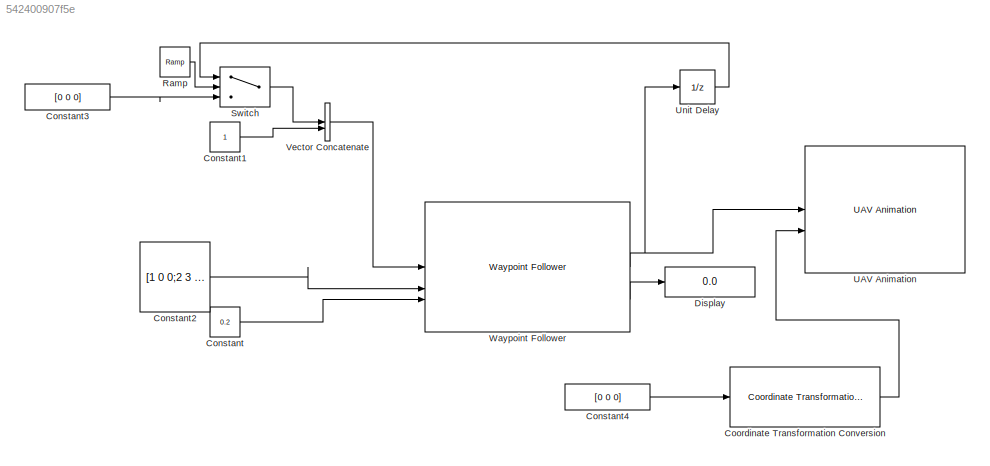
MODEL slx_542400907f5e
KIND model
CONFIG AbsTol = auto
CONFIG EnableMultiTasking = off
CONFIG FixedStep = auto
CONFIG MaxStep = auto
CONFIG MinStep = auto
CONFIG RelTol = 1e-3
CONFIG SampleTimeConstraint = Unconstrained
CONFIG SolverName = VariableStepAuto
CONFIG StartTime = 0.0
CONFIG StopTime = 10.0
BLOCK [Constant] Constant
  Value = 0.2
BLOCK [Constant] Constant1
BLOCK [Constant] Constant2
  Value = [1 0 0;2 3 2;4 3 4;2 4 3;0 0 0]
BLOCK [Constant] Constant3
  Value = [0 0 0]
BLOCK [Constant] Constant4
  Value = [0 0 0]
BLOCK [Reference] Coordinate Transformation Conversion  REF=robotcorelib/Coordinate Transformation Conversion
  LibrarySourceBlock = uavutilslib/Coordinate Transformation Conversion
  SourceBlock = robotcorelib/Coordinate Transformation Conversion
  SourceType = robotics.slcore.internal.block.CoordinateTransformationConversion
BLOCK [Display] Display
  Decimation = 1
BLOCK [Reference] Ramp  REF=simulink/Sources/Ramp
  SourceBlock = simulink/Sources/Ramp
  SourceType = Ramp
BLOCK [Switch] Switch
  Criteria = u2 > Threshold
  InputSameDT = off
  SaturateOnIntegerOverflow = off
BLOCK [Reference] UAV Animation  REF=uavutilslib/UAV Animation
  SourceBlock = uavutilslib/UAV Animation
  SourceType = uav.sluav.internal.system.UAVAnimation
BLOCK [UnitDelay] Unit Delay
  HasFrameUpgradeWarning = on
  SampleTime = -1
BLOCK [Concatenate] Vector Concatenate
BLOCK [Reference] Waypoint Follower  REF=uavalgslib/Waypoint Follower
  SourceBlock = uavalgslib/Waypoint Follower
  SourceType = uav.sluav.internal.system.WaypointFollower
LINE Constant1:1 -> Vector Concatenate:2
LINE Constant2:1 -> Waypoint Follower:2
LINE Constant3:1 -> Switch:3
LINE Constant4:1 -> Coordinate Transformation Conversion:1
LINE Constant:1 -> Waypoint Follower:3
LINE Coordinate Transformation Conversion:1 -> UAV Animation:2
LINE Ramp:1 -> Switch:2
LINE Switch:1 -> Vector Concatenate:1
LINE Unit Delay:1 -> Switch:1
LINE Vector Concatenate:1 -> Waypoint Follower:1
NET Waypoint Follower:1 -> UAV Animation:1, Unit Delay:1
LINE Waypoint Follower:3 -> Display:1
note: NET lines group one-source signal fan-out (src -> all destinations, sorted); 1:1 wires keep LINE
